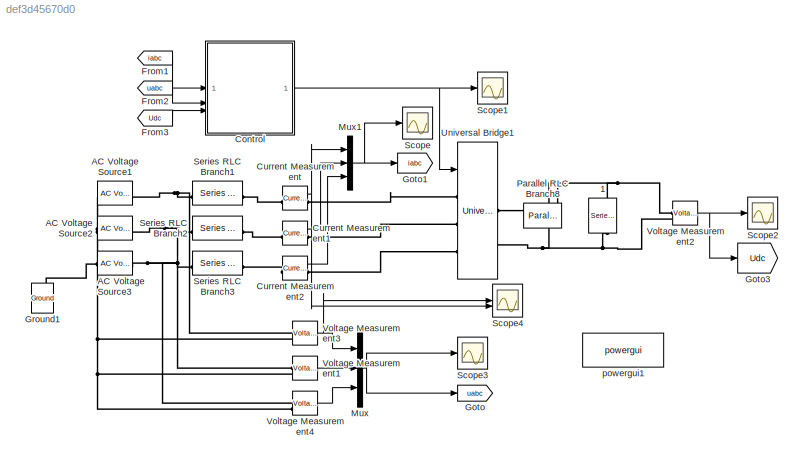
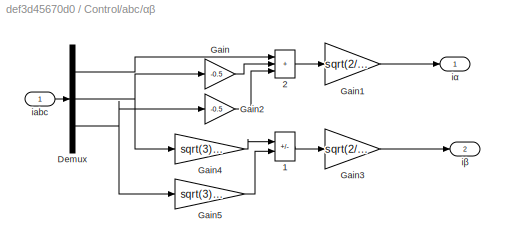
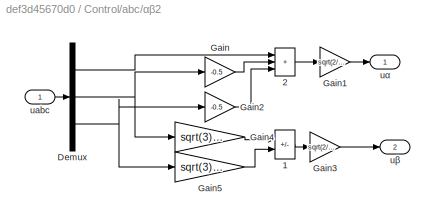
MODEL slx_def3d45670d0
KIND model
CONFIG AbsTol = auto
CONFIG EnableMultiTasking = off
CONFIG FixedStep = auto
CONFIG MaxStep = auto
CONFIG MinStep = auto
CONFIG RelTol = 1e-3
CONFIG SampleTimeConstraint = Unconstrained
CONFIG SolverName = VariableStepAuto
CONFIG StartTime = 0.0
CONFIG StopTime = 0.5
BLOCK [Reference] 1  REF=spsSeriesRLCBranchLib/Series RLC Branch
  LibrarySourceBlock = sps_lib/Passives/Series RLC Branch
  NameLocation = left
  SourceBlock = spsSeriesRLCBranchLib/Series RLC Branch
  SourceType = Series RLC Branch
BLOCK [Reference] AC Voltage Source1  REF=spsACVoltageSourceLib/AC Voltage Source
  LibrarySourceBlock = sps_lib/Sources/AC Voltage Source
  SourceBlock = spsACVoltageSourceLib/AC Voltage Source
  SourceType = AC Voltage Source
BLOCK [Reference] AC Voltage Source2  REF=spsACVoltageSourceLib/AC Voltage Source
  LibrarySourceBlock = sps_lib/Sources/AC Voltage Source
  SourceBlock = spsACVoltageSourceLib/AC Voltage Source
  SourceType = AC Voltage Source
BLOCK [Reference] AC Voltage Source3  REF=spsACVoltageSourceLib/AC Voltage Source
  LibrarySourceBlock = sps_lib/Sources/AC Voltage Source
  SourceBlock = spsACVoltageSourceLib/AC Voltage Source
  SourceType = AC Voltage Source
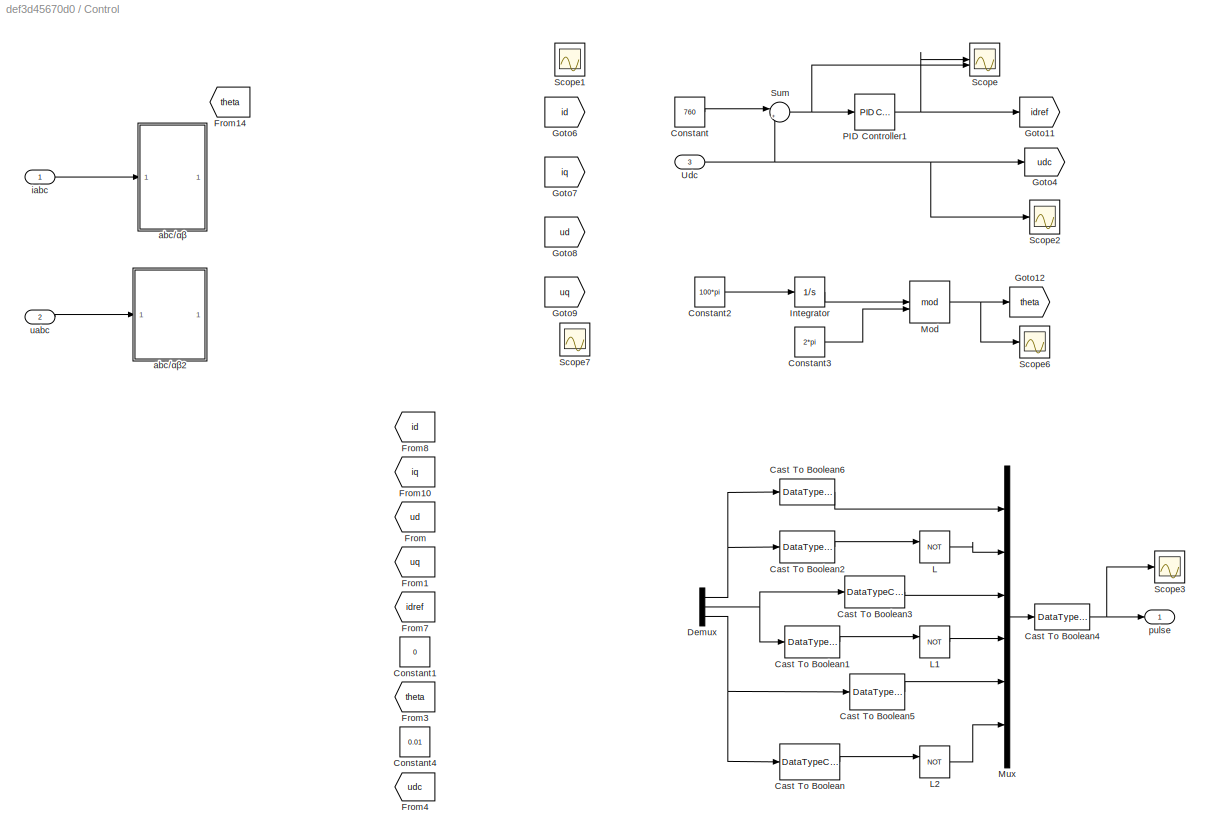
BLOCK [SubSystem] Control
BLOCK [DataTypeConversion] Control/Cast To Boolean
  OutDataTypeStr = boolean
  RndMeth = Floor
  SaturateOnIntegerOverflow = off
BLOCK [DataTypeConversion] Control/Cast To Boolean1
  OutDataTypeStr = boolean
  RndMeth = Floor
  SaturateOnIntegerOverflow = off
BLOCK [DataTypeConversion] Control/Cast To Boolean2
  OutDataTypeStr = boolean
  RndMeth = Floor
  SaturateOnIntegerOverflow = off
BLOCK [DataTypeConversion] Control/Cast To Boolean3
  OutDataTypeStr = boolean
  RndMeth = Floor
  SaturateOnIntegerOverflow = off
BLOCK [DataTypeConversion] Control/Cast To Boolean4
  OutDataTypeStr = double
  RndMeth = Floor
  SaturateOnIntegerOverflow = off
BLOCK [DataTypeConversion] Control/Cast To Boolean5
  OutDataTypeStr = boolean
  RndMeth = Floor
  SaturateOnIntegerOverflow = off
BLOCK [DataTypeConversion] Control/Cast To Boolean6
  OutDataTypeStr = boolean
  RndMeth = Floor
  SaturateOnIntegerOverflow = off
BLOCK [Constant] Control/Constant
  Value = 760
BLOCK [Constant] Control/Constant1
  Value = 0
BLOCK [Constant] Control/Constant2
  Value = 100*pi
BLOCK [Constant] Control/Constant3
  Value = 2*pi
BLOCK [Constant] Control/Constant4
  Value = 0.01
BLOCK [Demux] Control/Demux
  Outputs = 3
BLOCK [From] Control/From
  GotoTag = ud
BLOCK [From] Control/From1
  GotoTag = uq
BLOCK [From] Control/From10
  GotoTag = iq
BLOCK [From] Control/From14
  GotoTag = theta
BLOCK [From] Control/From3
  GotoTag = theta
BLOCK [From] Control/From4
  GotoTag = udc
BLOCK [From] Control/From7
  GotoTag = idref
BLOCK [From] Control/From8
  GotoTag = id
BLOCK [Goto] Control/Goto11
  GotoTag = idref
BLOCK [Goto] Control/Goto12
  GotoTag = theta
BLOCK [Goto] Control/Goto4
  GotoTag = udc
BLOCK [Goto] Control/Goto6
  GotoTag = id
BLOCK [Goto] Control/Goto7
  GotoTag = iq
BLOCK [Goto] Control/Goto8
  GotoTag = ud
BLOCK [Goto] Control/Goto9
  GotoTag = uq
BLOCK [Integrator] Control/Integrator
BLOCK [Logic] Control/L
  AllPortsSameDT = off
  Operator = NOT
BLOCK [Logic] Control/L1
  AllPortsSameDT = off
  Operator = NOT
BLOCK [Logic] Control/L2
  AllPortsSameDT = off
  Operator = NOT
BLOCK [Math] Control/Mod
  Operator = mod
  SignedPower = on
BLOCK [Mux] Control/Mux
  DisplayOption = bar
  Inputs = 6
BLOCK [Reference] Control/PID Controller1  REF=slpidlib/PID Controller
  SourceBlock = slpidlib/PID Controller
  SourceType = PID 1dof
BLOCK [Scope] Control/Scope
  Floating = off
  NumInputPorts = 2
  ScopeSpecificationString = Simulink.scopes.TimeScopeBlockCfg('CurrentConfiguration', extmgr.ConfigurationSet(extmgr.Configuration('Core','General UI',true),extmgr.Configuration('Core','Source UI',true),extmgr.Configuration('Sources','WiredSimulink',true,'DataLoggingVariableName','ScopeData1'),extmgr.Configuration('Visuals','Time Domain',true,'SerializedDisplays',{struct('MinYLimReal','-95.63135','MaxYLimReal','855.09634','Y...<+1419ch>
BLOCK [Scope] Control/Scope1
  Floating = off
  NumInputPorts = 2
  ScopeSpecificationString = Simulink.scopes.TimeScopeBlockCfg('CurrentConfiguration', extmgr.ConfigurationSet(extmgr.Configuration('Core','General UI',true,'FigureColor',[1 1 1]),extmgr.Configuration('Core','Source UI',true),extmgr.Configuration('Sources','WiredSimulink',true,'DataLoggingVariableName','ScopeData1'),extmgr.Configuration('Visuals','Time Domain',true,'SerializedDisplays',{struct('MinYLimReal','-179.89302','MaxY...<+1682ch>
BLOCK [Scope] Control/Scope2
  Floating = off
  NumInputPorts = 1
  ScopeSpecificationString = Simulink.scopes.TimeScopeBlockCfg('CurrentConfiguration', extmgr.ConfigurationSet(extmgr.Configuration('Core','General UI',true),extmgr.Configuration('Core','Source UI',true),extmgr.Configuration('Sources','WiredSimulink',true,'DataLoggingVariableName','ScopeData2'),extmgr.Configuration('Visuals','Time Domain',true,'SerializedDisplays',{struct('MinYLimReal','-128.03568','MaxYLimReal','1152.07114',...<+1480ch>
BLOCK [Scope] Control/Scope3
  Floating = off
  NumInputPorts = 1
  ScopeSpecificationString = Simulink.scopes.TimeScopeBlockCfg('CurrentConfiguration', extmgr.ConfigurationSet(extmgr.Configuration('Core','General UI',true),extmgr.Configuration('Core','Source UI',true),extmgr.Configuration('Sources','WiredSimulink',true,'DataLoggingVariableName','ScopeData3'),extmgr.Configuration('Visuals','Time Domain',true,'SerializedDisplays',{struct('MinYLimReal','-0.125','MaxYLimReal','1.125','YLabelRe...<+1634ch>
BLOCK [Scope] Control/Scope6
  Floating = off
  NumInputPorts = 1
  ScopeSpecificationString = Simulink.scopes.TimeScopeBlockCfg('CurrentConfiguration', extmgr.ConfigurationSet(extmgr.Configuration('Core','General UI',true),extmgr.Configuration('Core','Source UI',true),extmgr.Configuration('Sources','WiredSimulink',true,'DataLoggingVariableName','ScopeData6'),extmgr.Configuration('Visuals','Time Domain',true,'SerializedDisplays',{struct('MinYLimReal','-0.7854','MaxYLimReal','7.06858','YLabe...<+1460ch>
BLOCK [Scope] Control/Scope7
  Floating = off
  NumInputPorts = 2
  ScopeSpecificationString = Simulink.scopes.TimeScopeBlockCfg('CurrentConfiguration', extmgr.ConfigurationSet(extmgr.Configuration('Core','General UI',true),extmgr.Configuration('Core','Source UI',true),extmgr.Configuration('Sources','WiredSimulink',true,'DataLoggingVariableName','ScopeData7'),extmgr.Configuration('Visuals','Time Domain',true,'SerializedDisplays',{struct('MinYLimReal','-336.80484','MaxYLimReal','336.80484','...<+1421ch>
BLOCK [Sum] Control/Sum
  Inputs = |+-
BLOCK [Inport] Control/Udc
  Port = 3
BLOCK [SubSystem] Control/abc//αβ
BLOCK [Sum] Control/abc//αβ/    1
  IconShape = rectangular
  Inputs = +-
BLOCK [Sum] Control/abc//αβ/    2
  IconShape = rectangular
  Inputs = +++
BLOCK [Demux] Control/abc//αβ/Demux
  Outputs = 3
BLOCK [Gain] Control/abc//αβ/Gain
  Gain = -0.5
BLOCK [Gain] Control/abc//αβ/Gain1
  Gain = sqrt(2/3)
BLOCK [Gain] Control/abc//αβ/Gain2
  Gain = -0.5
BLOCK [Gain] Control/abc//αβ/Gain3
  Gain = sqrt(2/3)
BLOCK [Gain] Control/abc//αβ/Gain4
  Gain = sqrt(3)/2
BLOCK [Gain] Control/abc//αβ/Gain5
  Gain = sqrt(3)/2
BLOCK [Inport] Control/abc//αβ/iabc
BLOCK [Outport] Control/abc//αβ/iα
  VectorParamsAs1DForOutWhenUnconnected = off
BLOCK [Outport] Control/abc//αβ/iβ
  Port = 2
  VectorParamsAs1DForOutWhenUnconnected = off
BLOCK [SubSystem] Control/abc//αβ2
BLOCK [Sum] Control/abc//αβ2/    1
  IconShape = rectangular
  Inputs = +-
BLOCK [Sum] Control/abc//αβ2/    2
  IconShape = rectangular
  Inputs = +++
BLOCK [Demux] Control/abc//αβ2/Demux
  Outputs = 3
BLOCK [Gain] Control/abc//αβ2/Gain
  Gain = -0.5
BLOCK [Gain] Control/abc//αβ2/Gain1
  Gain = sqrt(2/3)
BLOCK [Gain] Control/abc//αβ2/Gain2
  Gain = -0.5
BLOCK [Gain] Control/abc//αβ2/Gain3
  Gain = sqrt(2/3)
BLOCK [Gain] Control/abc//αβ2/Gain4
  Gain = sqrt(3)/2
BLOCK [Gain] Control/abc//αβ2/Gain5
  Gain = sqrt(3)/2
BLOCK [Inport] Control/abc//αβ2/uabc
BLOCK [Outport] Control/abc//αβ2/uα
  VectorParamsAs1DForOutWhenUnconnected = off
BLOCK [Outport] Control/abc//αβ2/uβ
  Port = 2
  VectorParamsAs1DForOutWhenUnconnected = off
BLOCK [Inport] Control/iabc
BLOCK [Outport] Control/pulse
  VectorParamsAs1DForOutWhenUnconnected = off
BLOCK [Inport] Control/uabc
  Port = 2
BLOCK [Reference] Current Measurement  REF=spsCurrentMeasurementLib/Current Measurement
  LibrarySourceBlock = sps_lib/Sensors and Measurements/Current Measurement
  SourceBlock = spsCurrentMeasurementLib/Current Measurement
  SourceType = Current Measurement
  UserDataPersistent = on
BLOCK [Reference] Current Measurement1  REF=spsCurrentMeasurementLib/Current Measurement
  LibrarySourceBlock = sps_lib/Sensors and Measurements/Current Measurement
  SourceBlock = spsCurrentMeasurementLib/Current Measurement
  SourceType = Current Measurement
  UserDataPersistent = on
BLOCK [Reference] Current Measurement2  REF=spsCurrentMeasurementLib/Current Measurement
  LibrarySourceBlock = sps_lib/Sensors and Measurements/Current Measurement
  SourceBlock = spsCurrentMeasurementLib/Current Measurement
  SourceType = Current Measurement
  UserDataPersistent = on
BLOCK [From] From1
  GotoTag = iabc
BLOCK [From] From2
  GotoTag = uabc
BLOCK [From] From3
  GotoTag = Udc
BLOCK [Goto] Goto
  GotoTag = uabc
BLOCK [Goto] Goto1
  GotoTag = iabc
BLOCK [Goto] Goto3
  GotoTag = Udc
BLOCK [Reference] Ground1  REF=spsGroundLib/Ground
  LibrarySourceBlock = sps_lib/Utilities/Ground
  NameLocation = right
  SourceBlock = spsGroundLib/Ground
  SourceType = Ground
BLOCK [Mux] Mux
  DisplayOption = bar
  Inputs = 3
BLOCK [Mux] Mux1
  DisplayOption = bar
  Inputs = 3
BLOCK [Reference] Parallel RLC Branch8  REF=spsParallelRLCBranchLib/Parallel RLC Branch
  AttributesFormatString = \n
  LibrarySourceBlock = sps_lib/Passives/Parallel RLC Branch
  NameLocation = left
  SourceBlock = spsParallelRLCBranchLib/Parallel RLC Branch
  SourceType = Parallel RLC Branch
BLOCK [Scope] Scope
  Floating = off
  NumInputPorts = 1
  ScopeSpecificationString = Simulink.scopes.TimeScopeBlockCfg('CurrentConfiguration', extmgr.ConfigurationSet(extmgr.Configuration('Core','General UI',true,'FigureColor',[1 1 1]),extmgr.Configuration('Core','Source UI',true),extmgr.Configuration('Sources','WiredSimulink',true,'DataLoggingVariableName','ScopeData3','DataLogging',true),extmgr.Configuration('Visuals','Time Domain',true,'SerializedDisplays',{struct('MinYLimReal'...<+1847ch>
BLOCK [Scope] Scope1
  Floating = off
  NumInputPorts = 1
  ScopeSpecificationString = Simulink.scopes.TimeScopeBlockCfg('CurrentConfiguration', extmgr.ConfigurationSet(extmgr.Configuration('Core','General UI',true),extmgr.Configuration('Core','Source UI',true),extmgr.Configuration('Sources','WiredSimulink',true,'DataLoggingVariableName','ScopeData2'),extmgr.Configuration('Visuals','Time Domain',true,'SerializedDisplays',{struct('MinYLimReal','-0.125','MaxYLimReal','1.125','YLabelRe...<+1509ch>
BLOCK [Scope] Scope2
  Floating = off
  NumInputPorts = 1
  ScopeSpecificationString = Simulink.scopes.TimeScopeBlockCfg('CurrentConfiguration', extmgr.ConfigurationSet(extmgr.Configuration('Core','General UI',true,'FigureColor',[1 1 1]),extmgr.Configuration('Core','Source UI',true),extmgr.Configuration('Sources','WiredSimulink',true,'DataLoggingVariableName','ScopeData1'),extmgr.Configuration('Visuals','Time Domain',true,'SerializedDisplays',{struct('MinYLimReal','-118.64333','MaxY...<+1631ch>
BLOCK [Scope] Scope3
  Floating = off
  NumInputPorts = 1
  ScopeSpecificationString = Simulink.scopes.TimeScopeBlockCfg('CurrentConfiguration', extmgr.ConfigurationSet(extmgr.Configuration('Core','General UI',true),extmgr.Configuration('Core','Source UI',true),extmgr.Configuration('Sources','WiredSimulink',true,'DataLoggingVariableName','ScopeData4'),extmgr.Configuration('Visuals','Time Domain',true,'SerializedDisplays',{struct('MinYLimReal','-388.75','MaxYLimReal','388.75','YLabel...<+1496ch>
BLOCK [Scope] Scope4
  Floating = off
  NumInputPorts = 2
  ScopeSpecificationString = Simulink.scopes.TimeScopeBlockCfg('CurrentConfiguration', extmgr.ConfigurationSet(extmgr.Configuration('Core','General UI',true,'FigureColor',[1 1 1]),extmgr.Configuration('Core','Source UI',true),extmgr.Configuration('Sources','WiredSimulink',true,'DataLoggingVariableName','ScopeData4'),extmgr.Configuration('Visuals','Time Domain',true,'SerializedDisplays',{struct('MinYLimReal','-275.00000','MaxY...<+1732ch>
BLOCK [Reference] Series RLC Branch1  REF=spsSeriesRLCBranchLib/Series RLC Branch
  LibrarySourceBlock = sps_lib/Passives/Series RLC Branch
  SourceBlock = spsSeriesRLCBranchLib/Series RLC Branch
  SourceType = Series RLC Branch
BLOCK [Reference] Series RLC Branch2  REF=spsSeriesRLCBranchLib/Series RLC Branch
  LibrarySourceBlock = sps_lib/Passives/Series RLC Branch
  SourceBlock = spsSeriesRLCBranchLib/Series RLC Branch
  SourceType = Series RLC Branch
BLOCK [Reference] Series RLC Branch3  REF=spsSeriesRLCBranchLib/Series RLC Branch
  LibrarySourceBlock = sps_lib/Passives/Series RLC Branch
  SourceBlock = spsSeriesRLCBranchLib/Series RLC Branch
  SourceType = Series RLC Branch
BLOCK [Reference] Universal Bridge1  REF=spsUniversalBridgeLib/Universal Bridge
  LibrarySourceBlock = sps_lib/Power Electronics/Universal Bridge
  NameLocation = left
  SourceBlock = spsUniversalBridgeLib/Universal Bridge
  SourceType = Universal Bridge
BLOCK [Reference] Voltage Measurement1  REF=spsVoltageMeasurementLib/Voltage Measurement
  LibrarySourceBlock = sps_lib/Sensors and Measurements/Voltage Measurement
  SourceBlock = spsVoltageMeasurementLib/Voltage Measurement
  SourceType = Voltage Measurement
  UserDataPersistent = on
BLOCK [Reference] Voltage Measurement2  REF=spsVoltageMeasurementLib/Voltage Measurement
  LibrarySourceBlock = sps_lib/Sensors and Measurements/Voltage Measurement
  SourceBlock = spsVoltageMeasurementLib/Voltage Measurement
  SourceType = Voltage Measurement
  UserDataPersistent = on
BLOCK [Reference] Voltage Measurement3  REF=spsVoltageMeasurementLib/Voltage Measurement
  LibrarySourceBlock = sps_lib/Sensors and Measurements/Voltage Measurement
  SourceBlock = spsVoltageMeasurementLib/Voltage Measurement
  SourceType = Voltage Measurement
  UserDataPersistent = on
BLOCK [Reference] Voltage Measurement4  REF=spsVoltageMeasurementLib/Voltage Measurement
  LibrarySourceBlock = sps_lib/Sensors and Measurements/Voltage Measurement
  SourceBlock = spsVoltageMeasurementLib/Voltage Measurement
  SourceType = Voltage Measurement
  UserDataPersistent = on
BLOCK [Reference] powergui1  REF=spspowerguiLib/powergui
  LibrarySourceBlock = sps_lib/powergui
  Priority = 1
  SourceBlock = spspowerguiLib/powergui
  SourceType = PSB option menu block
LINE Control/Cast To Boolean1:1 -> Control/L1:1
LINE Control/Cast To Boolean2:1 -> Control/L:1
LINE Control/Cast To Boolean3:1 -> Control/Mux:3
NET Control/Cast To Boolean4:1 -> Control/Scope3:1, Control/pulse:1
LINE Control/Cast To Boolean5:1 -> Control/Mux:5
LINE Control/Cast To Boolean6:1 -> Control/Mux:1
LINE Control/Cast To Boolean:1 -> Control/L2:1
LINE Control/Constant2:1 -> Control/Integrator:1
LINE Control/Constant3:1 -> Control/Mod:2
LINE Control/Constant:1 -> Control/Sum:1
NET Control/Demux:1 -> Control/Cast To Boolean2:1, Control/Cast To Boolean6:1
NET Control/Demux:2 -> Control/Cast To Boolean1:1, Control/Cast To Boolean3:1
NET Control/Demux:3 -> Control/Cast To Boolean5:1, Control/Cast To Boolean:1
LINE Control/Integrator:1 -> Control/Mod:1
LINE Control/L1:1 -> Control/Mux:4
LINE Control/L2:1 -> Control/Mux:6
LINE Control/L:1 -> Control/Mux:2
NET Control/Mod:1 -> Control/Goto12:1, Control/Scope6:1
LINE Control/Mux:1 -> Control/Cast To Boolean4:1
NET Control/PID Controller1:1 -> Control/Goto11:1, Control/Scope:1
NET Control/Sum:1 -> Control/PID Controller1:1, Control/Scope:2
NET Control/Udc:1 -> Control/Goto4:1, Control/Scope2:1, Control/Sum:2
LINE Control/abc//αβ/    1:1 -> Control/abc//αβ/Gain3:1
LINE Control/abc//αβ/    2:1 -> Control/abc//αβ/Gain1:1
LINE Control/abc//αβ/Demux:1 -> Control/abc//αβ/    2:1
NET Control/abc//αβ/Demux:2 -> Control/abc//αβ/Gain4:1, Control/abc//αβ/Gain:1
NET Control/abc//αβ/Demux:3 -> Control/abc//αβ/Gain2:1, Control/abc//αβ/Gain5:1
LINE Control/abc//αβ/Gain1:1 -> Control/abc//αβ/iα:1
LINE Control/abc//αβ/Gain2:1 -> Control/abc//αβ/    2:3
LINE Control/abc//αβ/Gain3:1 -> Control/abc//αβ/iβ:1
LINE Control/abc//αβ/Gain4:1 -> Control/abc//αβ/    1:1
LINE Control/abc//αβ/Gain5:1 -> Control/abc//αβ/    1:2
LINE Control/abc//αβ/Gain:1 -> Control/abc//αβ/    2:2
LINE Control/abc//αβ/iabc:1 -> Control/abc//αβ/Demux:1
LINE Control/abc//αβ2/    1:1 -> Control/abc//αβ2/Gain3:1
LINE Control/abc//αβ2/    2:1 -> Control/abc//αβ2/Gain1:1
LINE Control/abc//αβ2/Demux:1 -> Control/abc//αβ2/    2:1
NET Control/abc//αβ2/Demux:2 -> Control/abc//αβ2/Gain4:1, Control/abc//αβ2/Gain:1
NET Control/abc//αβ2/Demux:3 -> Control/abc//αβ2/Gain2:1, Control/abc//αβ2/Gain5:1
LINE Control/abc//αβ2/Gain1:1 -> Control/abc//αβ2/uα:1
LINE Control/abc//αβ2/Gain2:1 -> Control/abc//αβ2/    2:3
LINE Control/abc//αβ2/Gain3:1 -> Control/abc//αβ2/uβ:1
LINE Control/abc//αβ2/Gain4:1 -> Control/abc//αβ2/    1:1
LINE Control/abc//αβ2/Gain5:1 -> Control/abc//αβ2/    1:2
LINE Control/abc//αβ2/Gain:1 -> Control/abc//αβ2/    2:2
LINE Control/abc//αβ2/uabc:1 -> Control/abc//αβ2/Demux:1
LINE Control/iabc:1 -> Control/abc//αβ:1
LINE Control/uabc:1 -> Control/abc//αβ2:1
NET Control:1 -> Scope1:1, Universal Bridge1:1
LINE Current Measurement1:1 -> Mux1:2
LINE Current Measurement2:1 -> Mux1:3
NET Current Measurement:1 -> Mux1:1, Scope4:2
LINE From1:1 -> Control:1
LINE From2:1 -> Control:2
LINE From3:1 -> Control:3
NET Mux1:1 -> Goto1:1, Scope:1
NET Mux:1 -> Goto:1, Scope3:1
LINE Voltage Measurement1:1 -> Mux:2
NET Voltage Measurement2:1 -> Goto3:1, Scope2:1
NET Voltage Measurement3:1 -> Mux:1, Scope4:1
LINE Voltage Measurement4:1 -> Mux:3
PNET net1: 1:LConn1 -- Parallel RLC Branch8:LConn1 -- Universal Bridge1:RConn1 -- Voltage Measurement2:LConn1
PNET net2: 1:RConn1 -- Parallel RLC Branch8:RConn1 -- Universal Bridge1:RConn2 -- Voltage Measurement2:LConn2
PNET net3: AC Voltage Source1:LConn1 -- AC Voltage Source2:LConn1 -- AC Voltage Source3:LConn1 -- Ground1:LConn1 -- Voltage Measurement1:LConn2 -- Voltage Measurement3:LConn2 -- Voltage Measurement4:LConn2
PNET net4: AC Voltage Source1:RConn1 -- Series RLC Branch1:LConn1 -- Voltage Measurement3:LConn1
PNET net5: AC Voltage Source2:RConn1 -- Series RLC Branch2:LConn1 -- Voltage Measurement1:LConn1
PNET net6: AC Voltage Source3:RConn1 -- Series RLC Branch3:LConn1 -- Voltage Measurement4:LConn1
PLINE Current Measurement1:LConn1 -- Series RLC Branch2:RConn1
PLINE Current Measurement1:RConn1 -- Universal Bridge1:LConn2
PLINE Current Measurement2:LConn1 -- Series RLC Branch3:RConn1
PLINE Current Measurement2:RConn1 -- Universal Bridge1:LConn3
PLINE Current Measurement:LConn1 -- Series RLC Branch1:RConn1
PLINE Current Measurement:RConn1 -- Universal Bridge1:LConn1
note: NET lines group one-source signal fan-out (src -> all destinations, sorted); 1:1 wires keep LINE; PNET lines group multi-terminal physical nets as a canonical sorted terminal list (undirected conserving connections); 2-terminal nets keep the pairwise PLINE form
